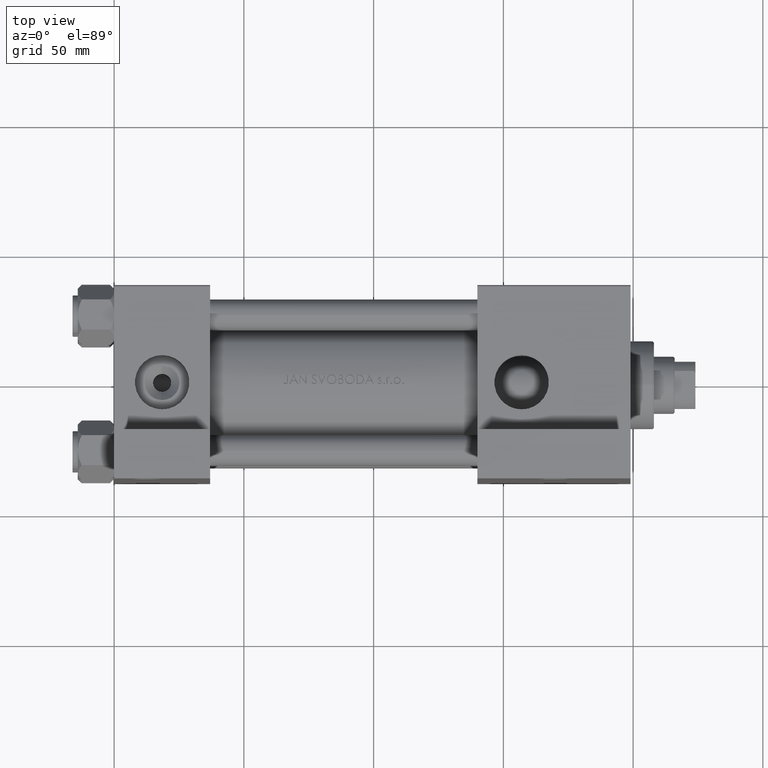
[diagram: clean part render]
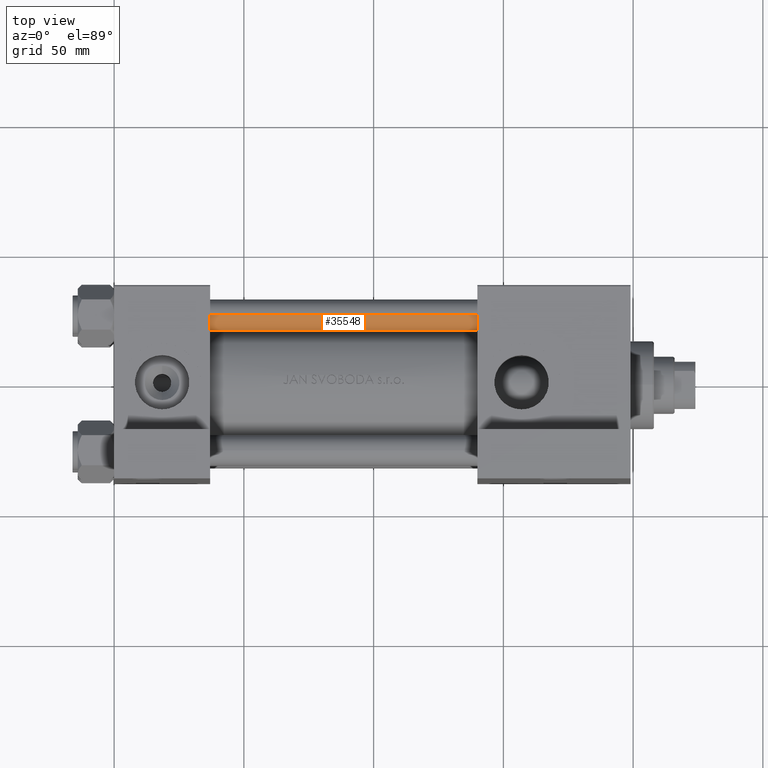
[diagram: same view with one face highlighted and labeled with its STEP entity id]
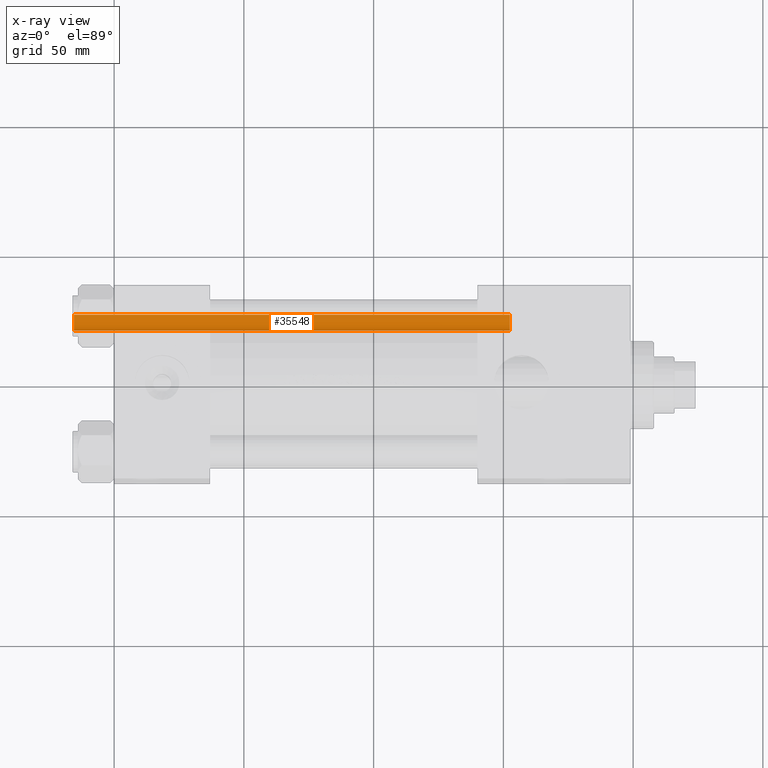
[diagram: x-ray of the same camera — body ghosted, the highlighted face saturated]
A machine part, top view. The second image highlights one B-rep face of the part: STEP entity #35548.
The next image is the same camera in x-ray: the body ghosted, the highlighted face saturated — about 0% of this face is hidden behind the body in this view.
In plain terms, the highlighted cylindrical surface (edge-blend (fillet) strip) has radius 6 mm, axis along (-1, -0, -0).
Its self-contained STEP definition (entity closure, byte-faithful):
#545 = CARTESIAN_POINT ( 'NONE',  ( 0.000000000000000000, 0.000000000000000000, 0.5000000000000004441 ) ) ;
#1226 = CIRCLE ( 'NONE', #41774, 6.000000000000000888 ) ;
#5168 = ORIENTED_EDGE ( 'NONE', *, *, #23927, .T. ) ;
#5833 = CARTESIAN_POINT ( 'NONE',  ( -6.000000000000000888, 0.000000000000000000, 0.5000000000000004441 ) ) ;
#5857 = VERTEX_POINT ( 'NONE', #26870 ) ;
#11323 = DIRECTION ( 'NONE',  ( -1.000000000000000000, 0.000000000000000000, 0.000000000000000000 ) ) ;
#12477 = DIRECTION ( 'NONE',  ( 1.000000000000000000, 0.000000000000000000, 0.000000000000000000 ) ) ;
#12581 = EDGE_CURVE ( 'NONE', #48485, #17998, #44489, .T. ) ;
#13135 = CIRCLE ( 'NONE', #30598, 6.000000000000000888 ) ;
#14384 = AXIS2_PLACEMENT_3D ( 'NONE', #38438, #30233, #11323 ) ;
#14850 = EDGE_CURVE ( 'NONE', #31603, #5857, #26370, .T. ) ;
#15062 = FACE_OUTER_BOUND ( 'NONE', #17472, .T. ) ;
#17472 = EDGE_LOOP ( 'NONE', ( #40249, #5168, #33390, #45092 ) ) ;
#17998 = VERTEX_POINT ( 'NONE', #5833 ) ;
#18186 = CARTESIAN_POINT ( 'NONE',  ( 6.000000000000000888, 7.347880794884120722E-16, 169.0000000000000000 ) ) ;
#18861 = DIRECTION ( 'NONE',  ( 0.000000000000000000, 0.000000000000000000, -1.000000000000000000 ) ) ;
#21671 = VECTOR ( 'NONE', #36266, 1000.000000000000000 ) ;
#21925 = DIRECTION ( 'NONE',  ( -0.000000000000000000, -0.000000000000000000, -1.000000000000000000 ) ) ;
#23689 = DIRECTION ( 'NONE',  ( -0.000000000000000000, -0.000000000000000000, 1.000000000000000000 ) ) ;
#23927 = EDGE_CURVE ( 'NONE', #31603, #48485, #1226, .T. ) ;
#25320 = CARTESIAN_POINT ( 'NONE',  ( -6.000000000000000888, 0.000000000000000000, 169.0000000000000000 ) ) ;
#25716 = VECTOR ( 'NONE', #21925, 1000.000000000000000 ) ;
#26370 = LINE ( 'NONE', #18186, #25716 ) ;
#26753 = CYLINDRICAL_SURFACE ( 'NONE', #14384, 6.000000000000000888 ) ;
#26870 = CARTESIAN_POINT ( 'NONE',  ( 6.000000000000000888, 7.347880794884120722E-16, 0.5000000000000004441 ) ) ;
#30037 = CARTESIAN_POINT ( 'NONE',  ( 0.000000000000000000, 0.000000000000000000, 168.4999999999999716 ) ) ;
#30233 = DIRECTION ( 'NONE',  ( -0.000000000000000000, -0.000000000000000000, -1.000000000000000000 ) ) ;
#30598 = AXIS2_PLACEMENT_3D ( 'NONE', #545, #23689, #12477 ) ;
#31603 = VERTEX_POINT ( 'NONE', #46338 ) ;
#33390 = ORIENTED_EDGE ( 'NONE', *, *, #12581, .T. ) ;
#35548 = ADVANCED_FACE ( 'NONE', ( #15062 ), #26753, .T. ) ;
#36266 = DIRECTION ( 'NONE',  ( -0.000000000000000000, -0.000000000000000000, -1.000000000000000000 ) ) ;
#37026 = DIRECTION ( 'NONE',  ( 1.000000000000000000, 0.000000000000000000, 0.000000000000000000 ) ) ;
#38438 = CARTESIAN_POINT ( 'NONE',  ( 0.000000000000000000, 0.000000000000000000, 169.0000000000000000 ) ) ;
#39753 = CARTESIAN_POINT ( 'NONE',  ( -6.000000000000000888, 0.000000000000000000, 168.4999999999999716 ) ) ;
#40249 = ORIENTED_EDGE ( 'NONE', *, *, #14850, .F. ) ;
#41774 = AXIS2_PLACEMENT_3D ( 'NONE', #30037, #18861, #37026 ) ;
#44489 = LINE ( 'NONE', #25320, #21671 ) ;
#45092 = ORIENTED_EDGE ( 'NONE', *, *, #49074, .T. ) ;
#46338 = CARTESIAN_POINT ( 'NONE',  ( 6.000000000000000888, 7.347880794884120722E-16, 168.4999999999999716 ) ) ;
#48485 = VERTEX_POINT ( 'NONE', #39753 ) ;
#49074 = EDGE_CURVE ( 'NONE', #17998, #5857, #13135, .T. ) ;